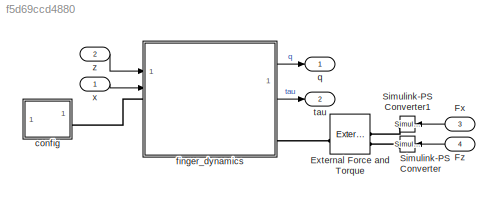
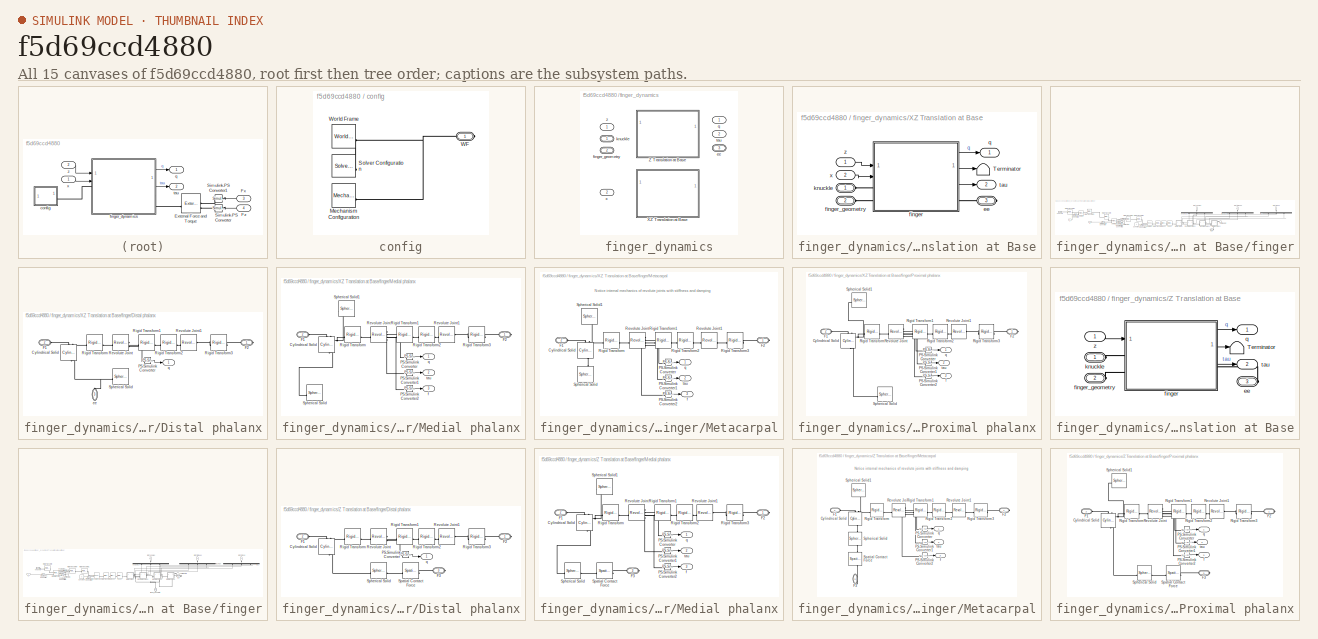
[diagram: thumbnail index - all 15 canvases of the model, root first then tree order]
MODEL slx_f5d69ccd4880
KIND model
CONFIG AbsTol = auto
CONFIG EnableMultiTasking = off
CONFIG FixedStep = auto
CONFIG MaxStep = auto
CONFIG MinStep = auto
CONFIG RelTol = 1e-3
CONFIG SampleTimeConstraint = Unconstrained
CONFIG SolverName = VariableStepAuto
CONFIG StartTime = 0.0
CONFIG StopTime = 10.0
BLOCK [Reference] External Force and Torque  REF=sm_lib/Forces and
Torques/External Force
and Torque
  NameLocation = top
  SourceBlock = sm_lib/Forces and\nTorques/External Force\nand Torque
  SourceType = External Force\nand Torque
BLOCK [Inport] Fx
  NameLocation = right
  Port = 3
BLOCK [Inport] Fz
  NameLocation = right
  Port = 4
BLOCK [Reference] Simulink-PS Converter  REF=nesl_utility/Simulink-PS
Converter
  NameLocation = top
  SourceBlock = nesl_utility/Simulink-PS\nConverter
  SourceType = Simulink-PS\nConverter
BLOCK [Reference] Simulink-PS Converter1  REF=nesl_utility/Simulink-PS
Converter
  SourceBlock = nesl_utility/Simulink-PS\nConverter
  SourceType = Simulink-PS\nConverter
BLOCK [SubSystem] config
BLOCK [Reference] config/Mechanism Configuration  REF=sm_lib/Utilities/Mechanism
Configuration
  SourceBlock = sm_lib/Utilities/Mechanism\nConfiguration
  SourceType = Mechanism\nConfiguration
BLOCK [Reference] config/Solver Configuration  REF=nesl_utility/Solver
Configuration
  SourceBlock = nesl_utility/Solver\nConfiguration
  SourceType = Solver\nConfiguration
BLOCK [PMIOPort] config/WF
  Side = Right
BLOCK [Reference] config/World Frame  REF=sm_lib/Frames and
Transforms/World Frame
  SourceBlock = sm_lib/Frames and\nTransforms/World Frame
  SourceType = World Frame
BLOCK [SubSystem] finger_dynamics
  Variant = on
  VariantControl = Choice
BLOCK [SubSystem] finger_dynamics/XZ Translation at Base
  VariantControl = plant_choice == 2
BLOCK [Terminator] finger_dynamics/XZ Translation at Base/Terminator
BLOCK [PMIOPort] finger_dynamics/XZ Translation at Base/ee
  NameLocation = right
  Port = 3
  Side = Right
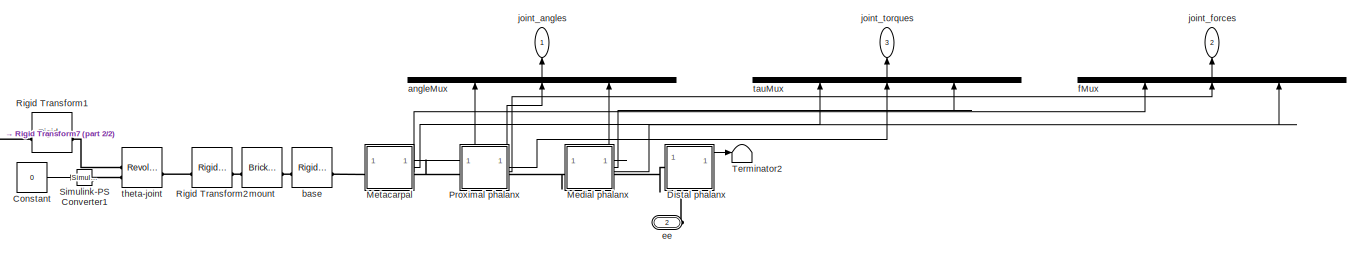
[diagram: finger_dynamics/XZ Translation at Base/finger - part 1/2, center side, full height]
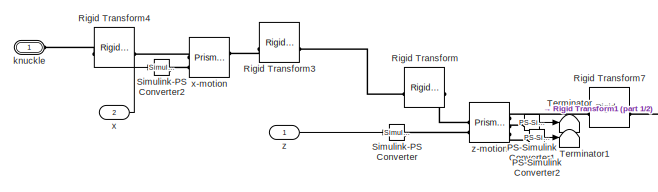
[diagram: finger_dynamics/XZ Translation at Base/finger - part 2/2, middle left region]
BLOCK [SubSystem] finger_dynamics/XZ Translation at Base/finger
BLOCK [Constant] finger_dynamics/XZ Translation at Base/finger/Constant
  Value = 0
BLOCK [SubSystem] finger_dynamics/XZ Translation at Base/finger/Distal phalanx
BLOCK [Reference] finger_dynamics/XZ Translation at Base/finger/Distal phalanx/Cylindrical Solid  REF=sm_lib/Body Elements/Cylindrical Solid
  NameLocation = left
  SourceBlock = sm_lib/Body Elements/Cylindrical Solid
  SourceType = Cylindrical Solid
BLOCK [PMIOPort] finger_dynamics/XZ Translation at Base/finger/Distal phalanx/F1
  NameLocation = top
  Port = 2
  Side = Left
BLOCK [PMIOPort] finger_dynamics/XZ Translation at Base/finger/Distal phalanx/F2
  Side = Right
BLOCK [Reference] finger_dynamics/XZ Translation at Base/finger/Distal phalanx/PS-Simulink Converter  REF=nesl_utility/PS-Simulink
Converter
  SourceBlock = nesl_utility/PS-Simulink\nConverter
  SourceType = PS-Simulink\nConverter
BLOCK [Reference] finger_dynamics/XZ Translation at Base/finger/Distal phalanx/Revolute Joint  REF=sm_lib/Joints/Revolute Joint
  SourceBlock = sm_lib/Joints/Revolute Joint
  SourceType = Revolute Joint
BLOCK [Reference] finger_dynamics/XZ Translation at Base/finger/Distal phalanx/Revolute Joint1  REF=sm_lib/Joints/Revolute Joint
  SourceBlock = sm_lib/Joints/Revolute Joint
  SourceType = Revolute Joint
BLOCK [Reference] finger_dynamics/XZ Translation at Base/finger/Distal phalanx/Rigid Transform  REF=sm_lib/Frames and
Transforms/Rigid
Transform
  SourceBlock = sm_lib/Frames and\nTransforms/Rigid\nTransform
  SourceType = Rigid\nTransform
BLOCK [Reference] finger_dynamics/XZ Translation at Base/finger/Distal phalanx/Rigid Transform1  REF=sm_lib/Frames and
Transforms/Rigid
Transform
  NameLocation = top
  SourceBlock = sm_lib/Frames and\nTransforms/Rigid\nTransform
  SourceType = Rigid\nTransform
BLOCK [Reference] finger_dynamics/XZ Translation at Base/finger/Distal phalanx/Rigid Transform2  REF=sm_lib/Frames and
Transforms/Rigid
Transform
  SourceBlock = sm_lib/Frames and\nTransforms/Rigid\nTransform
  SourceType = Rigid\nTransform
BLOCK [Reference] finger_dynamics/XZ Translation at Base/finger/Distal phalanx/Rigid Transform3  REF=sm_lib/Frames and
Transforms/Rigid
Transform
  NameLocation = top
  SourceBlock = sm_lib/Frames and\nTransforms/Rigid\nTransform
  SourceType = Rigid\nTransform
BLOCK [Reference] finger_dynamics/XZ Translation at Base/finger/Distal phalanx/Spherical Solid  REF=sm_lib/Body Elements/Spherical Solid
  NameLocation = top
  SourceBlock = sm_lib/Body Elements/Spherical Solid
  SourceType = Spherical Solid
BLOCK [PMIOPort] finger_dynamics/XZ Translation at Base/finger/Distal phalanx/ee
  NameLocation = right
  Port = 3
  Side = Left
BLOCK [Outport] finger_dynamics/XZ Translation at Base/finger/Distal phalanx/q
BLOCK [SubSystem] finger_dynamics/XZ Translation at Base/finger/Medial phalanx
BLOCK [Reference] finger_dynamics/XZ Translation at Base/finger/Medial phalanx/Cylindrical Solid  REF=sm_lib/Body Elements/Cylindrical Solid
  NameLocation = left
  SourceBlock = sm_lib/Body Elements/Cylindrical Solid
  SourceType = Cylindrical Solid
BLOCK [PMIOPort] finger_dynamics/XZ Translation at Base/finger/Medial phalanx/F1
  NameLocation = top
  Port = 2
  Side = Left
BLOCK [PMIOPort] finger_dynamics/XZ Translation at Base/finger/Medial phalanx/F2
  Side = Right
BLOCK [Reference] finger_dynamics/XZ Translation at Base/finger/Medial phalanx/PS-Simulink Converter  REF=nesl_utility/PS-Simulink
Converter
  SourceBlock = nesl_utility/PS-Simulink\nConverter
  SourceType = PS-Simulink\nConverter
BLOCK [Reference] finger_dynamics/XZ Translation at Base/finger/Medial phalanx/PS-Simulink Converter1  REF=nesl_utility/PS-Simulink
Converter
  SourceBlock = nesl_utility/PS-Simulink\nConverter
  SourceType = PS-Simulink\nConverter
BLOCK [Reference] finger_dynamics/XZ Translation at Base/finger/Medial phalanx/PS-Simulink Converter2  REF=nesl_utility/PS-Simulink
Converter
  SourceBlock = nesl_utility/PS-Simulink\nConverter
  SourceType = PS-Simulink\nConverter
BLOCK [Reference] finger_dynamics/XZ Translation at Base/finger/Medial phalanx/Revolute Joint  REF=sm_lib/Joints/Revolute Joint
  SourceBlock = sm_lib/Joints/Revolute Joint
  SourceType = Revolute Joint
BLOCK [Reference] finger_dynamics/XZ Translation at Base/finger/Medial phalanx/Revolute Joint1  REF=sm_lib/Joints/Revolute Joint
  SourceBlock = sm_lib/Joints/Revolute Joint
  SourceType = Revolute Joint
BLOCK [Reference] finger_dynamics/XZ Translation at Base/finger/Medial phalanx/Rigid Transform  REF=sm_lib/Frames and
Transforms/Rigid
Transform
  SourceBlock = sm_lib/Frames and\nTransforms/Rigid\nTransform
  SourceType = Rigid\nTransform
BLOCK [Reference] finger_dynamics/XZ Translation at Base/finger/Medial phalanx/Rigid Transform1  REF=sm_lib/Frames and
Transforms/Rigid
Transform
  NameLocation = top
  SourceBlock = sm_lib/Frames and\nTransforms/Rigid\nTransform
  SourceType = Rigid\nTransform
BLOCK [Reference] finger_dynamics/XZ Translation at Base/finger/Medial phalanx/Rigid Transform2  REF=sm_lib/Frames and
Transforms/Rigid
Transform
  SourceBlock = sm_lib/Frames and\nTransforms/Rigid\nTransform
  SourceType = Rigid\nTransform
BLOCK [Reference] finger_dynamics/XZ Translation at Base/finger/Medial phalanx/Rigid Transform3  REF=sm_lib/Frames and
Transforms/Rigid
Transform
  NameLocation = top
  SourceBlock = sm_lib/Frames and\nTransforms/Rigid\nTransform
  SourceType = Rigid\nTransform
BLOCK [Reference] finger_dynamics/XZ Translation at Base/finger/Medial phalanx/Spherical Solid  REF=sm_lib/Body Elements/Spherical Solid
  NameLocation = top
  SourceBlock = sm_lib/Body Elements/Spherical Solid
  SourceType = Spherical Solid
BLOCK [Reference] finger_dynamics/XZ Translation at Base/finger/Medial phalanx/Spherical Solid1  REF=sm_lib/Body Elements/Spherical Solid
  NameLocation = top
  SourceBlock = sm_lib/Body Elements/Spherical Solid
  SourceType = Spherical Solid
BLOCK [Outport] finger_dynamics/XZ Translation at Base/finger/Medial phalanx/f
  Port = 3
BLOCK [Outport] finger_dynamics/XZ Translation at Base/finger/Medial phalanx/q
BLOCK [Outport] finger_dynamics/XZ Translation at Base/finger/Medial phalanx/tau
  Port = 2
BLOCK [SubSystem] finger_dynamics/XZ Translation at Base/finger/Metacarpal
BLOCK [Reference] finger_dynamics/XZ Translation at Base/finger/Metacarpal/Cylindrical Solid  REF=sm_lib/Body Elements/Cylindrical Solid
  NameLocation = left
  SourceBlock = sm_lib/Body Elements/Cylindrical Solid
  SourceType = Cylindrical Solid
BLOCK [PMIOPort] finger_dynamics/XZ Translation at Base/finger/Metacarpal/F1
  NameLocation = top
  Port = 2
  Side = Left
BLOCK [PMIOPort] finger_dynamics/XZ Translation at Base/finger/Metacarpal/F2
  Side = Right
BLOCK [Reference] finger_dynamics/XZ Translation at Base/finger/Metacarpal/PS-Simulink Converter  REF=nesl_utility/PS-Simulink
Converter
  SourceBlock = nesl_utility/PS-Simulink\nConverter
  SourceType = PS-Simulink\nConverter
BLOCK [Reference] finger_dynamics/XZ Translation at Base/finger/Metacarpal/PS-Simulink Converter1  REF=nesl_utility/PS-Simulink
Converter
  SourceBlock = nesl_utility/PS-Simulink\nConverter
  SourceType = PS-Simulink\nConverter
BLOCK [Reference] finger_dynamics/XZ Translation at Base/finger/Metacarpal/PS-Simulink Converter2  REF=nesl_utility/PS-Simulink
Converter
  SourceBlock = nesl_utility/PS-Simulink\nConverter
  SourceType = PS-Simulink\nConverter
BLOCK [Reference] finger_dynamics/XZ Translation at Base/finger/Metacarpal/Revolute Joint  REF=sm_lib/Joints/Revolute Joint
  SourceBlock = sm_lib/Joints/Revolute Joint
  SourceType = Revolute Joint
BLOCK [Reference] finger_dynamics/XZ Translation at Base/finger/Metacarpal/Revolute Joint1  REF=sm_lib/Joints/Revolute Joint
  SourceBlock = sm_lib/Joints/Revolute Joint
  SourceType = Revolute Joint
BLOCK [Reference] finger_dynamics/XZ Translation at Base/finger/Metacarpal/Rigid Transform  REF=sm_lib/Frames and
Transforms/Rigid
Transform
  SourceBlock = sm_lib/Frames and\nTransforms/Rigid\nTransform
  SourceType = Rigid\nTransform
BLOCK [Reference] finger_dynamics/XZ Translation at Base/finger/Metacarpal/Rigid Transform1  REF=sm_lib/Frames and
Transforms/Rigid
Transform
  NameLocation = top
  SourceBlock = sm_lib/Frames and\nTransforms/Rigid\nTransform
  SourceType = Rigid\nTransform
BLOCK [Reference] finger_dynamics/XZ Translation at Base/finger/Metacarpal/Rigid Transform2  REF=sm_lib/Frames and
Transforms/Rigid
Transform
  SourceBlock = sm_lib/Frames and\nTransforms/Rigid\nTransform
  SourceType = Rigid\nTransform
BLOCK [Reference] finger_dynamics/XZ Translation at Base/finger/Metacarpal/Rigid Transform3  REF=sm_lib/Frames and
Transforms/Rigid
Transform
  NameLocation = top
  SourceBlock = sm_lib/Frames and\nTransforms/Rigid\nTransform
  SourceType = Rigid\nTransform
BLOCK [Reference] finger_dynamics/XZ Translation at Base/finger/Metacarpal/Spherical Solid  REF=sm_lib/Body Elements/Spherical Solid
  NameLocation = right
  SourceBlock = sm_lib/Body Elements/Spherical Solid
  SourceType = Spherical Solid
BLOCK [Reference] finger_dynamics/XZ Translation at Base/finger/Metacarpal/Spherical Solid1  REF=sm_lib/Body Elements/Spherical Solid
  NameLocation = left
  SourceBlock = sm_lib/Body Elements/Spherical Solid
  SourceType = Spherical Solid
BLOCK [Outport] finger_dynamics/XZ Translation at Base/finger/Metacarpal/f
  Port = 3
BLOCK [Outport] finger_dynamics/XZ Translation at Base/finger/Metacarpal/q
BLOCK [Outport] finger_dynamics/XZ Translation at Base/finger/Metacarpal/tau
  Port = 2
BLOCK [Reference] finger_dynamics/XZ Translation at Base/finger/PS-Simulink Converter1  REF=nesl_utility/PS-Simulink
Converter
  SourceBlock = nesl_utility/PS-Simulink\nConverter
  SourceType = PS-Simulink\nConverter
BLOCK [Reference] finger_dynamics/XZ Translation at Base/finger/PS-Simulink Converter2  REF=nesl_utility/PS-Simulink
Converter
  SourceBlock = nesl_utility/PS-Simulink\nConverter
  SourceType = PS-Simulink\nConverter
BLOCK [SubSystem] finger_dynamics/XZ Translation at Base/finger/Proximal phalanx
BLOCK [Reference] finger_dynamics/XZ Translation at Base/finger/Proximal phalanx/Cylindrical Solid  REF=sm_lib/Body Elements/Cylindrical Solid
  NameLocation = left
  SourceBlock = sm_lib/Body Elements/Cylindrical Solid
  SourceType = Cylindrical Solid
BLOCK [PMIOPort] finger_dynamics/XZ Translation at Base/finger/Proximal phalanx/F1
  NameLocation = top
  Port = 2
  Side = Left
BLOCK [PMIOPort] finger_dynamics/XZ Translation at Base/finger/Proximal phalanx/F2
  Side = Right
BLOCK [Reference] finger_dynamics/XZ Translation at Base/finger/Proximal phalanx/PS-Simulink Converter  REF=nesl_utility/PS-Simulink
Converter
  SourceBlock = nesl_utility/PS-Simulink\nConverter
  SourceType = PS-Simulink\nConverter
BLOCK [Reference] finger_dynamics/XZ Translation at Base/finger/Proximal phalanx/PS-Simulink Converter1  REF=nesl_utility/PS-Simulink
Converter
  SourceBlock = nesl_utility/PS-Simulink\nConverter
  SourceType = PS-Simulink\nConverter
BLOCK [Reference] finger_dynamics/XZ Translation at Base/finger/Proximal phalanx/PS-Simulink Converter2  REF=nesl_utility/PS-Simulink
Converter
  SourceBlock = nesl_utility/PS-Simulink\nConverter
  SourceType = PS-Simulink\nConverter
BLOCK [Reference] finger_dynamics/XZ Translation at Base/finger/Proximal phalanx/Revolute Joint  REF=sm_lib/Joints/Revolute Joint
  SourceBlock = sm_lib/Joints/Revolute Joint
  SourceType = Revolute Joint
BLOCK [Reference] finger_dynamics/XZ Translation at Base/finger/Proximal phalanx/Revolute Joint1  REF=sm_lib/Joints/Revolute Joint
  SourceBlock = sm_lib/Joints/Revolute Joint
  SourceType = Revolute Joint
BLOCK [Reference] finger_dynamics/XZ Translation at Base/finger/Proximal phalanx/Rigid Transform  REF=sm_lib/Frames and
Transforms/Rigid
Transform
  SourceBlock = sm_lib/Frames and\nTransforms/Rigid\nTransform
  SourceType = Rigid\nTransform
BLOCK [Reference] finger_dynamics/XZ Translation at Base/finger/Proximal phalanx/Rigid Transform1  REF=sm_lib/Frames and
Transforms/Rigid
Transform
  NameLocation = top
  SourceBlock = sm_lib/Frames and\nTransforms/Rigid\nTransform
  SourceType = Rigid\nTransform
BLOCK [Reference] finger_dynamics/XZ Translation at Base/finger/Proximal phalanx/Rigid Transform2  REF=sm_lib/Frames and
Transforms/Rigid
Transform
  SourceBlock = sm_lib/Frames and\nTransforms/Rigid\nTransform
  SourceType = Rigid\nTransform
BLOCK [Reference] finger_dynamics/XZ Translation at Base/finger/Proximal phalanx/Rigid Transform3  REF=sm_lib/Frames and
Transforms/Rigid
Transform
  NameLocation = top
  SourceBlock = sm_lib/Frames and\nTransforms/Rigid\nTransform
  SourceType = Rigid\nTransform
BLOCK [Reference] finger_dynamics/XZ Translation at Base/finger/Proximal phalanx/Spherical Solid  REF=sm_lib/Body Elements/Spherical Solid
  NameLocation = top
  SourceBlock = sm_lib/Body Elements/Spherical Solid
  SourceType = Spherical Solid
BLOCK [Reference] finger_dynamics/XZ Translation at Base/finger/Proximal phalanx/Spherical Solid1  REF=sm_lib/Body Elements/Spherical Solid
  NameLocation = top
  SourceBlock = sm_lib/Body Elements/Spherical Solid
  SourceType = Spherical Solid
BLOCK [Outport] finger_dynamics/XZ Translation at Base/finger/Proximal phalanx/f
  Port = 3
BLOCK [Outport] finger_dynamics/XZ Translation at Base/finger/Proximal phalanx/q
BLOCK [Outport] finger_dynamics/XZ Translation at Base/finger/Proximal phalanx/tau
  Port = 2
BLOCK [Reference] finger_dynamics/XZ Translation at Base/finger/Rigid Transform  REF=sm_lib/Frames and
Transforms/Rigid
Transform
  SourceBlock = sm_lib/Frames and\nTransforms/Rigid\nTransform
  SourceType = Rigid\nTransform
BLOCK [Reference] finger_dynamics/XZ Translation at Base/finger/Rigid Transform1  REF=sm_lib/Frames and
Transforms/Rigid
Transform
  SourceBlock = sm_lib/Frames and\nTransforms/Rigid\nTransform
  SourceType = Rigid\nTransform
BLOCK [Reference] finger_dynamics/XZ Translation at Base/finger/Rigid Transform2  REF=sm_lib/Frames and
Transforms/Rigid
Transform
  NameLocation = top
  SourceBlock = sm_lib/Frames and\nTransforms/Rigid\nTransform
  SourceType = Rigid\nTransform
BLOCK [Reference] finger_dynamics/XZ Translation at Base/finger/Rigid Transform3  REF=sm_lib/Frames and
Transforms/Rigid
Transform
  SourceBlock = sm_lib/Frames and\nTransforms/Rigid\nTransform
  SourceType = Rigid\nTransform
BLOCK [Reference] finger_dynamics/XZ Translation at Base/finger/Rigid Transform4  REF=sm_lib/Frames and
Transforms/Rigid
Transform
  SourceBlock = sm_lib/Frames and\nTransforms/Rigid\nTransform
  SourceType = Rigid\nTransform
BLOCK [Reference] finger_dynamics/XZ Translation at Base/finger/Rigid Transform7  REF=sm_lib/Frames and
Transforms/Rigid
Transform
  SourceBlock = sm_lib/Frames and\nTransforms/Rigid\nTransform
  SourceType = Rigid\nTransform
BLOCK [Reference] finger_dynamics/XZ Translation at Base/finger/Simulink-PS Converter  REF=nesl_utility/Simulink-PS
Converter
  SourceBlock = nesl_utility/Simulink-PS\nConverter
  SourceType = Simulink-PS\nConverter
BLOCK [Reference] finger_dynamics/XZ Translation at Base/finger/Simulink-PS Converter1  REF=nesl_utility/Simulink-PS
Converter
  SourceBlock = nesl_utility/Simulink-PS\nConverter
  SourceType = Simulink-PS\nConverter
BLOCK [Reference] finger_dynamics/XZ Translation at Base/finger/Simulink-PS Converter2  REF=nesl_utility/Simulink-PS
Converter
  SourceBlock = nesl_utility/Simulink-PS\nConverter
  SourceType = Simulink-PS\nConverter
BLOCK [Terminator] finger_dynamics/XZ Translation at Base/finger/Terminator
BLOCK [Terminator] finger_dynamics/XZ Translation at Base/finger/Terminator1
BLOCK [Terminator] finger_dynamics/XZ Translation at Base/finger/Terminator2
BLOCK [Mux] finger_dynamics/XZ Translation at Base/finger/angleMux
  DisplayOption = bar
  Inputs = 3
  NameLocation = right
BLOCK [Reference] finger_dynamics/XZ Translation at Base/finger/base  REF=sm_lib/Frames and
Transforms/Rigid
Transform
  SourceBlock = sm_lib/Frames and\nTransforms/Rigid\nTransform
  SourceType = Rigid\nTransform
BLOCK [PMIOPort] finger_dynamics/XZ Translation at Base/finger/ee
  Port = 2
  Side = Right
BLOCK [Mux] finger_dynamics/XZ Translation at Base/finger/fMux
  DisplayOption = bar
  Inputs = 3
  NameLocation = right
BLOCK [Outport] finger_dynamics/XZ Translation at Base/finger/joint_angles
  NameLocation = right
BLOCK [Outport] finger_dynamics/XZ Translation at Base/finger/joint_forces
  NameLocation = right
  Port = 2
BLOCK [Outport] finger_dynamics/XZ Translation at Base/finger/joint_torques
  NameLocation = right
  Port = 3
BLOCK [PMIOPort] finger_dynamics/XZ Translation at Base/finger/knuckle
  NameLocation = top
  Side = Left
BLOCK [Reference] finger_dynamics/XZ Translation at Base/finger/mount  REF=sm_lib/Body Elements/Brick Solid
  SourceBlock = sm_lib/Body Elements/Brick Solid
  SourceType = Brick Solid
BLOCK [Mux] finger_dynamics/XZ Translation at Base/finger/tauMux
  DisplayOption = bar
  Inputs = 3
  NameLocation = right
BLOCK [Reference] finger_dynamics/XZ Translation at Base/finger/theta-joint  REF=sm_lib/Joints/Revolute Joint
  SourceBlock = sm_lib/Joints/Revolute Joint
  SourceType = Revolute Joint
BLOCK [Inport] finger_dynamics/XZ Translation at Base/finger/x
  Port = 2
BLOCK [Reference] finger_dynamics/XZ Translation at Base/finger/x-motion  REF=sm_lib/Joints/Prismatic
Joint
  SourceBlock = sm_lib/Joints/Prismatic\nJoint
  SourceType = Prismatic\nJoint
BLOCK [Inport] finger_dynamics/XZ Translation at Base/finger/z
BLOCK [Reference] finger_dynamics/XZ Translation at Base/finger/z-motion  REF=sm_lib/Joints/Prismatic
Joint
  SourceBlock = sm_lib/Joints/Prismatic\nJoint
  SourceType = Prismatic\nJoint
BLOCK [PMIOPort] finger_dynamics/XZ Translation at Base/finger_geometry
  NameLocation = left
  Port = 2
  Side = Left
BLOCK [PMIOPort] finger_dynamics/XZ Translation at Base/knuckle
  NameLocation = left
  Side = Left
BLOCK [Outport] finger_dynamics/XZ Translation at Base/q
  NameLocation = right
BLOCK [Outport] finger_dynamics/XZ Translation at Base/tau
  NameLocation = right
  Port = 2
BLOCK [Inport] finger_dynamics/XZ Translation at Base/x
  NameLocation = left
  Port = 2
BLOCK [Inport] finger_dynamics/XZ Translation at Base/z
  NameLocation = left
BLOCK [SubSystem] finger_dynamics/Z Translation at Base
  VariantControl = plant_choice == 1
BLOCK [Terminator] finger_dynamics/Z Translation at Base/Terminator
BLOCK [PMIOPort] finger_dynamics/Z Translation at Base/ee
  NameLocation = right
  Port = 3
  Side = Right
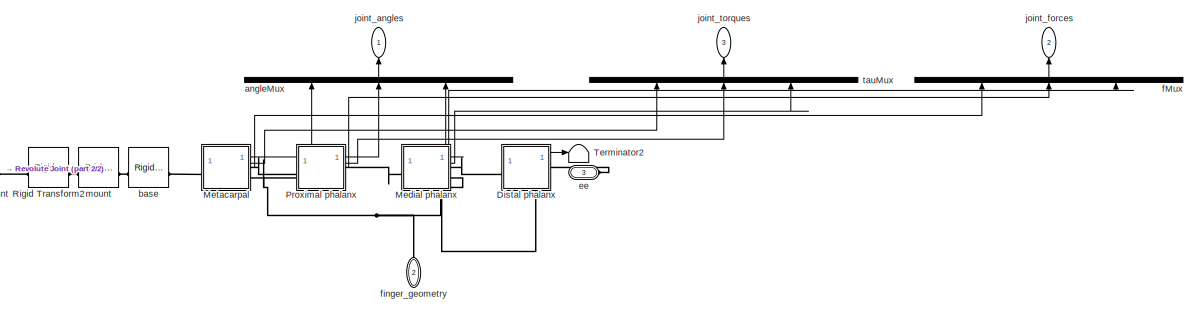
[diagram: finger_dynamics/Z Translation at Base/finger - part 1/2, center side, full height]
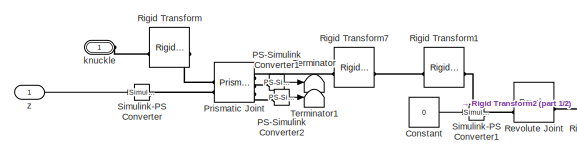
[diagram: finger_dynamics/Z Translation at Base/finger - part 2/2, middle left region]
BLOCK [SubSystem] finger_dynamics/Z Translation at Base/finger
BLOCK [Constant] finger_dynamics/Z Translation at Base/finger/Constant
  Value = 0
BLOCK [SubSystem] finger_dynamics/Z Translation at Base/finger/Distal phalanx
BLOCK [Reference] finger_dynamics/Z Translation at Base/finger/Distal phalanx/Cylindrical Solid  REF=sm_lib/Body Elements/Cylindrical Solid
  NameLocation = left
  SourceBlock = sm_lib/Body Elements/Cylindrical Solid
  SourceType = Cylindrical Solid
BLOCK [PMIOPort] finger_dynamics/Z Translation at Base/finger/Distal phalanx/F1
  NameLocation = top
  Port = 2
  Side = Left
BLOCK [PMIOPort] finger_dynamics/Z Translation at Base/finger/Distal phalanx/F2
  Side = Right
BLOCK [PMIOPort] finger_dynamics/Z Translation at Base/finger/Distal phalanx/F3
  Port = 3
  Side = Right
BLOCK [Reference] finger_dynamics/Z Translation at Base/finger/Distal phalanx/PS-Simulink Converter  REF=nesl_utility/PS-Simulink
Converter
  SourceBlock = nesl_utility/PS-Simulink\nConverter
  SourceType = PS-Simulink\nConverter
BLOCK [Reference] finger_dynamics/Z Translation at Base/finger/Distal phalanx/Revolute Joint  REF=sm_lib/Joints/Revolute Joint
  SourceBlock = sm_lib/Joints/Revolute Joint
  SourceType = Revolute Joint
BLOCK [Reference] finger_dynamics/Z Translation at Base/finger/Distal phalanx/Revolute Joint1  REF=sm_lib/Joints/Revolute Joint
  SourceBlock = sm_lib/Joints/Revolute Joint
  SourceType = Revolute Joint
BLOCK [Reference] finger_dynamics/Z Translation at Base/finger/Distal phalanx/Rigid Transform  REF=sm_lib/Frames and
Transforms/Rigid
Transform
  SourceBlock = sm_lib/Frames and\nTransforms/Rigid\nTransform
  SourceType = Rigid\nTransform
BLOCK [Reference] finger_dynamics/Z Translation at Base/finger/Distal phalanx/Rigid Transform1  REF=sm_lib/Frames and
Transforms/Rigid
Transform
  NameLocation = top
  SourceBlock = sm_lib/Frames and\nTransforms/Rigid\nTransform
  SourceType = Rigid\nTransform
BLOCK [Reference] finger_dynamics/Z Translation at Base/finger/Distal phalanx/Rigid Transform2  REF=sm_lib/Frames and
Transforms/Rigid
Transform
  SourceBlock = sm_lib/Frames and\nTransforms/Rigid\nTransform
  SourceType = Rigid\nTransform
BLOCK [Reference] finger_dynamics/Z Translation at Base/finger/Distal phalanx/Rigid Transform3  REF=sm_lib/Frames and
Transforms/Rigid
Transform
  NameLocation = top
  SourceBlock = sm_lib/Frames and\nTransforms/Rigid\nTransform
  SourceType = Rigid\nTransform
BLOCK [Reference] finger_dynamics/Z Translation at Base/finger/Distal phalanx/Spatial Contact Force  REF=sm_lib/Forces and
Torques/Spatial
Contact Force
  SourceBlock = sm_lib/Forces and\nTorques/Spatial\nContact Force
  SourceType = Spatial\nContact Force
BLOCK [Reference] finger_dynamics/Z Translation at Base/finger/Distal phalanx/Spherical Solid  REF=sm_lib/Body Elements/Spherical Solid
  NameLocation = top
  SourceBlock = sm_lib/Body Elements/Spherical Solid
  SourceType = Spherical Solid
BLOCK [Outport] finger_dynamics/Z Translation at Base/finger/Distal phalanx/q
BLOCK [SubSystem] finger_dynamics/Z Translation at Base/finger/Medial phalanx
BLOCK [Reference] finger_dynamics/Z Translation at Base/finger/Medial phalanx/Cylindrical Solid  REF=sm_lib/Body Elements/Cylindrical Solid
  NameLocation = left
  SourceBlock = sm_lib/Body Elements/Cylindrical Solid
  SourceType = Cylindrical Solid
BLOCK [PMIOPort] finger_dynamics/Z Translation at Base/finger/Medial phalanx/F1
  NameLocation = top
  Port = 2
  Side = Left
BLOCK [PMIOPort] finger_dynamics/Z Translation at Base/finger/Medial phalanx/F2
  Side = Right
BLOCK [PMIOPort] finger_dynamics/Z Translation at Base/finger/Medial phalanx/F3
  Port = 3
  Side = Right
BLOCK [Reference] finger_dynamics/Z Translation at Base/finger/Medial phalanx/PS-Simulink Converter  REF=nesl_utility/PS-Simulink
Converter
  SourceBlock = nesl_utility/PS-Simulink\nConverter
  SourceType = PS-Simulink\nConverter
BLOCK [Reference] finger_dynamics/Z Translation at Base/finger/Medial phalanx/PS-Simulink Converter1  REF=nesl_utility/PS-Simulink
Converter
  SourceBlock = nesl_utility/PS-Simulink\nConverter
  SourceType = PS-Simulink\nConverter
BLOCK [Reference] finger_dynamics/Z Translation at Base/finger/Medial phalanx/PS-Simulink Converter2  REF=nesl_utility/PS-Simulink
Converter
  SourceBlock = nesl_utility/PS-Simulink\nConverter
  SourceType = PS-Simulink\nConverter
BLOCK [Reference] finger_dynamics/Z Translation at Base/finger/Medial phalanx/Revolute Joint  REF=sm_lib/Joints/Revolute Joint
  SourceBlock = sm_lib/Joints/Revolute Joint
  SourceType = Revolute Joint
BLOCK [Reference] finger_dynamics/Z Translation at Base/finger/Medial phalanx/Revolute Joint1  REF=sm_lib/Joints/Revolute Joint
  SourceBlock = sm_lib/Joints/Revolute Joint
  SourceType = Revolute Joint
BLOCK [Reference] finger_dynamics/Z Translation at Base/finger/Medial phalanx/Rigid Transform  REF=sm_lib/Frames and
Transforms/Rigid
Transform
  SourceBlock = sm_lib/Frames and\nTransforms/Rigid\nTransform
  SourceType = Rigid\nTransform
BLOCK [Reference] finger_dynamics/Z Translation at Base/finger/Medial phalanx/Rigid Transform1  REF=sm_lib/Frames and
Transforms/Rigid
Transform
  NameLocation = top
  SourceBlock = sm_lib/Frames and\nTransforms/Rigid\nTransform
  SourceType = Rigid\nTransform
BLOCK [Reference] finger_dynamics/Z Translation at Base/finger/Medial phalanx/Rigid Transform2  REF=sm_lib/Frames and
Transforms/Rigid
Transform
  SourceBlock = sm_lib/Frames and\nTransforms/Rigid\nTransform
  SourceType = Rigid\nTransform
BLOCK [Reference] finger_dynamics/Z Translation at Base/finger/Medial phalanx/Rigid Transform3  REF=sm_lib/Frames and
Transforms/Rigid
Transform
  NameLocation = top
  SourceBlock = sm_lib/Frames and\nTransforms/Rigid\nTransform
  SourceType = Rigid\nTransform
BLOCK [Reference] finger_dynamics/Z Translation at Base/finger/Medial phalanx/Spatial Contact Force  REF=sm_lib/Forces and
Torques/Spatial
Contact Force
  SourceBlock = sm_lib/Forces and\nTorques/Spatial\nContact Force
  SourceType = Spatial\nContact Force
BLOCK [Reference] finger_dynamics/Z Translation at Base/finger/Medial phalanx/Spherical Solid  REF=sm_lib/Body Elements/Spherical Solid
  NameLocation = top
  SourceBlock = sm_lib/Body Elements/Spherical Solid
  SourceType = Spherical Solid
BLOCK [Reference] finger_dynamics/Z Translation at Base/finger/Medial phalanx/Spherical Solid1  REF=sm_lib/Body Elements/Spherical Solid
  NameLocation = top
  SourceBlock = sm_lib/Body Elements/Spherical Solid
  SourceType = Spherical Solid
BLOCK [Outport] finger_dynamics/Z Translation at Base/finger/Medial phalanx/f
  Port = 3
BLOCK [Outport] finger_dynamics/Z Translation at Base/finger/Medial phalanx/q
BLOCK [Outport] finger_dynamics/Z Translation at Base/finger/Medial phalanx/tau
  Port = 2
BLOCK [SubSystem] finger_dynamics/Z Translation at Base/finger/Metacarpal
BLOCK [Reference] finger_dynamics/Z Translation at Base/finger/Metacarpal/Cylindrical Solid  REF=sm_lib/Body Elements/Cylindrical Solid
  NameLocation = left
  SourceBlock = sm_lib/Body Elements/Cylindrical Solid
  SourceType = Cylindrical Solid
BLOCK [PMIOPort] finger_dynamics/Z Translation at Base/finger/Metacarpal/F1
  NameLocation = top
  Port = 2
  Side = Left
BLOCK [PMIOPort] finger_dynamics/Z Translation at Base/finger/Metacarpal/F2
  Side = Right
BLOCK [PMIOPort] finger_dynamics/Z Translation at Base/finger/Metacarpal/F3
  NameLocation = left
  Port = 3
  Side = Right
BLOCK [Reference] finger_dynamics/Z Translation at Base/finger/Metacarpal/PS-Simulink Converter  REF=nesl_utility/PS-Simulink
Converter
  SourceBlock = nesl_utility/PS-Simulink\nConverter
  SourceType = PS-Simulink\nConverter
BLOCK [Reference] finger_dynamics/Z Translation at Base/finger/Metacarpal/PS-Simulink Converter1  REF=nesl_utility/PS-Simulink
Converter
  SourceBlock = nesl_utility/PS-Simulink\nConverter
  SourceType = PS-Simulink\nConverter
BLOCK [Reference] finger_dynamics/Z Translation at Base/finger/Metacarpal/PS-Simulink Converter2  REF=nesl_utility/PS-Simulink
Converter
  SourceBlock = nesl_utility/PS-Simulink\nConverter
  SourceType = PS-Simulink\nConverter
BLOCK [Reference] finger_dynamics/Z Translation at Base/finger/Metacarpal/Revolute Joint  REF=sm_lib/Joints/Revolute Joint
  SourceBlock = sm_lib/Joints/Revolute Joint
  SourceType = Revolute Joint
BLOCK [Reference] finger_dynamics/Z Translation at Base/finger/Metacarpal/Revolute Joint1  REF=sm_lib/Joints/Revolute Joint
  SourceBlock = sm_lib/Joints/Revolute Joint
  SourceType = Revolute Joint
BLOCK [Reference] finger_dynamics/Z Translation at Base/finger/Metacarpal/Rigid Transform  REF=sm_lib/Frames and
Transforms/Rigid
Transform
  SourceBlock = sm_lib/Frames and\nTransforms/Rigid\nTransform
  SourceType = Rigid\nTransform
BLOCK [Reference] finger_dynamics/Z Translation at Base/finger/Metacarpal/Rigid Transform1  REF=sm_lib/Frames and
Transforms/Rigid
Transform
  NameLocation = top
  SourceBlock = sm_lib/Frames and\nTransforms/Rigid\nTransform
  SourceType = Rigid\nTransform
BLOCK [Reference] finger_dynamics/Z Translation at Base/finger/Metacarpal/Rigid Transform2  REF=sm_lib/Frames and
Transforms/Rigid
Transform
  SourceBlock = sm_lib/Frames and\nTransforms/Rigid\nTransform
  SourceType = Rigid\nTransform
BLOCK [Reference] finger_dynamics/Z Translation at Base/finger/Metacarpal/Rigid Transform3  REF=sm_lib/Frames and
Transforms/Rigid
Transform
  NameLocation = top
  SourceBlock = sm_lib/Frames and\nTransforms/Rigid\nTransform
  SourceType = Rigid\nTransform
BLOCK [Reference] finger_dynamics/Z Translation at Base/finger/Metacarpal/Spatial Contact Force  REF=sm_lib/Forces and
Torques/Spatial
Contact Force
  NameLocation = left
  SourceBlock = sm_lib/Forces and\nTorques/Spatial\nContact Force
  SourceType = Spatial\nContact Force
BLOCK [Reference] finger_dynamics/Z Translation at Base/finger/Metacarpal/Spherical Solid  REF=sm_lib/Body Elements/Spherical Solid
  NameLocation = right
  SourceBlock = sm_lib/Body Elements/Spherical Solid
  SourceType = Spherical Solid
BLOCK [Reference] finger_dynamics/Z Translation at Base/finger/Metacarpal/Spherical Solid1  REF=sm_lib/Body Elements/Spherical Solid
  NameLocation = left
  SourceBlock = sm_lib/Body Elements/Spherical Solid
  SourceType = Spherical Solid
BLOCK [Outport] finger_dynamics/Z Translation at Base/finger/Metacarpal/f
  Port = 3
BLOCK [Outport] finger_dynamics/Z Translation at Base/finger/Metacarpal/q
BLOCK [Outport] finger_dynamics/Z Translation at Base/finger/Metacarpal/tau
  Port = 2
BLOCK [Reference] finger_dynamics/Z Translation at Base/finger/PS-Simulink Converter1  REF=nesl_utility/PS-Simulink
Converter
  SourceBlock = nesl_utility/PS-Simulink\nConverter
  SourceType = PS-Simulink\nConverter
BLOCK [Reference] finger_dynamics/Z Translation at Base/finger/PS-Simulink Converter2  REF=nesl_utility/PS-Simulink
Converter
  SourceBlock = nesl_utility/PS-Simulink\nConverter
  SourceType = PS-Simulink\nConverter
BLOCK [Reference] finger_dynamics/Z Translation at Base/finger/Prismatic Joint  REF=sm_lib/Joints/Prismatic
Joint
  SourceBlock = sm_lib/Joints/Prismatic\nJoint
  SourceType = Prismatic\nJoint
BLOCK [SubSystem] finger_dynamics/Z Translation at Base/finger/Proximal phalanx
BLOCK [Reference] finger_dynamics/Z Translation at Base/finger/Proximal phalanx/Cylindrical Solid  REF=sm_lib/Body Elements/Cylindrical Solid
  NameLocation = left
  SourceBlock = sm_lib/Body Elements/Cylindrical Solid
  SourceType = Cylindrical Solid
BLOCK [PMIOPort] finger_dynamics/Z Translation at Base/finger/Proximal phalanx/F1
  NameLocation = top
  Port = 2
  Side = Left
BLOCK [PMIOPort] finger_dynamics/Z Translation at Base/finger/Proximal phalanx/F2
  Side = Right
BLOCK [PMIOPort] finger_dynamics/Z Translation at Base/finger/Proximal phalanx/F3
  Port = 3
  Side = Right
BLOCK [Reference] finger_dynamics/Z Translation at Base/finger/Proximal phalanx/PS-Simulink Converter  REF=nesl_utility/PS-Simulink
Converter
  SourceBlock = nesl_utility/PS-Simulink\nConverter
  SourceType = PS-Simulink\nConverter
BLOCK [Reference] finger_dynamics/Z Translation at Base/finger/Proximal phalanx/PS-Simulink Converter1  REF=nesl_utility/PS-Simulink
Converter
  SourceBlock = nesl_utility/PS-Simulink\nConverter
  SourceType = PS-Simulink\nConverter
BLOCK [Reference] finger_dynamics/Z Translation at Base/finger/Proximal phalanx/PS-Simulink Converter2  REF=nesl_utility/PS-Simulink
Converter
  SourceBlock = nesl_utility/PS-Simulink\nConverter
  SourceType = PS-Simulink\nConverter
BLOCK [Reference] finger_dynamics/Z Translation at Base/finger/Proximal phalanx/Revolute Joint  REF=sm_lib/Joints/Revolute Joint
  SourceBlock = sm_lib/Joints/Revolute Joint
  SourceType = Revolute Joint
BLOCK [Reference] finger_dynamics/Z Translation at Base/finger/Proximal phalanx/Revolute Joint1  REF=sm_lib/Joints/Revolute Joint
  SourceBlock = sm_lib/Joints/Revolute Joint
  SourceType = Revolute Joint
BLOCK [Reference] finger_dynamics/Z Translation at Base/finger/Proximal phalanx/Rigid Transform  REF=sm_lib/Frames and
Transforms/Rigid
Transform
  SourceBlock = sm_lib/Frames and\nTransforms/Rigid\nTransform
  SourceType = Rigid\nTransform
BLOCK [Reference] finger_dynamics/Z Translation at Base/finger/Proximal phalanx/Rigid Transform1  REF=sm_lib/Frames and
Transforms/Rigid
Transform
  NameLocation = top
  SourceBlock = sm_lib/Frames and\nTransforms/Rigid\nTransform
  SourceType = Rigid\nTransform
BLOCK [Reference] finger_dynamics/Z Translation at Base/finger/Proximal phalanx/Rigid Transform2  REF=sm_lib/Frames and
Transforms/Rigid
Transform
  SourceBlock = sm_lib/Frames and\nTransforms/Rigid\nTransform
  SourceType = Rigid\nTransform
BLOCK [Reference] finger_dynamics/Z Translation at Base/finger/Proximal phalanx/Rigid Transform3  REF=sm_lib/Frames and
Transforms/Rigid
Transform
  NameLocation = top
  SourceBlock = sm_lib/Frames and\nTransforms/Rigid\nTransform
  SourceType = Rigid\nTransform
BLOCK [Reference] finger_dynamics/Z Translation at Base/finger/Proximal phalanx/Spatial Contact Force  REF=sm_lib/Forces and
Torques/Spatial
Contact Force
  SourceBlock = sm_lib/Forces and\nTorques/Spatial\nContact Force
  SourceType = Spatial\nContact Force
BLOCK [Reference] finger_dynamics/Z Translation at Base/finger/Proximal phalanx/Spherical Solid  REF=sm_lib/Body Elements/Spherical Solid
  NameLocation = top
  SourceBlock = sm_lib/Body Elements/Spherical Solid
  SourceType = Spherical Solid
BLOCK [Reference] finger_dynamics/Z Translation at Base/finger/Proximal phalanx/Spherical Solid1  REF=sm_lib/Body Elements/Spherical Solid
  NameLocation = top
  SourceBlock = sm_lib/Body Elements/Spherical Solid
  SourceType = Spherical Solid
BLOCK [Outport] finger_dynamics/Z Translation at Base/finger/Proximal phalanx/f
  Port = 3
BLOCK [Outport] finger_dynamics/Z Translation at Base/finger/Proximal phalanx/q
BLOCK [Outport] finger_dynamics/Z Translation at Base/finger/Proximal phalanx/tau
  Port = 2
BLOCK [Reference] finger_dynamics/Z Translation at Base/finger/Revolute Joint  REF=sm_lib/Joints/Revolute Joint
  SourceBlock = sm_lib/Joints/Revolute Joint
  SourceType = Revolute Joint
BLOCK [Reference] finger_dynamics/Z Translation at Base/finger/Rigid Transform  REF=sm_lib/Frames and
Transforms/Rigid
Transform
  SourceBlock = sm_lib/Frames and\nTransforms/Rigid\nTransform
  SourceType = Rigid\nTransform
BLOCK [Reference] finger_dynamics/Z Translation at Base/finger/Rigid Transform1  REF=sm_lib/Frames and
Transforms/Rigid
Transform
  SourceBlock = sm_lib/Frames and\nTransforms/Rigid\nTransform
  SourceType = Rigid\nTransform
BLOCK [Reference] finger_dynamics/Z Translation at Base/finger/Rigid Transform2  REF=sm_lib/Frames and
Transforms/Rigid
Transform
  NameLocation = top
  SourceBlock = sm_lib/Frames and\nTransforms/Rigid\nTransform
  SourceType = Rigid\nTransform
BLOCK [Reference] finger_dynamics/Z Translation at Base/finger/Rigid Transform7  REF=sm_lib/Frames and
Transforms/Rigid
Transform
  SourceBlock = sm_lib/Frames and\nTransforms/Rigid\nTransform
  SourceType = Rigid\nTransform
BLOCK [Reference] finger_dynamics/Z Translation at Base/finger/Simulink-PS Converter  REF=nesl_utility/Simulink-PS
Converter
  SourceBlock = nesl_utility/Simulink-PS\nConverter
  SourceType = Simulink-PS\nConverter
BLOCK [Reference] finger_dynamics/Z Translation at Base/finger/Simulink-PS Converter1  REF=nesl_utility/Simulink-PS
Converter
  SourceBlock = nesl_utility/Simulink-PS\nConverter
  SourceType = Simulink-PS\nConverter
BLOCK [Terminator] finger_dynamics/Z Translation at Base/finger/Terminator
BLOCK [Terminator] finger_dynamics/Z Translation at Base/finger/Terminator1
BLOCK [Terminator] finger_dynamics/Z Translation at Base/finger/Terminator2
BLOCK [Mux] finger_dynamics/Z Translation at Base/finger/angleMux
  DisplayOption = bar
  Inputs = 3
  NameLocation = right
BLOCK [Reference] finger_dynamics/Z Translation at Base/finger/base  REF=sm_lib/Frames and
Transforms/Rigid
Transform
  SourceBlock = sm_lib/Frames and\nTransforms/Rigid\nTransform
  SourceType = Rigid\nTransform
BLOCK [PMIOPort] finger_dynamics/Z Translation at Base/finger/ee
  Port = 3
  Side = Right
BLOCK [Mux] finger_dynamics/Z Translation at Base/finger/fMux
  DisplayOption = bar
  Inputs = 3
  NameLocation = right
BLOCK [PMIOPort] finger_dynamics/Z Translation at Base/finger/finger_geometry
  NameLocation = right
  Port = 2
  Side = Left
BLOCK [Outport] finger_dynamics/Z Translation at Base/finger/joint_angles
  NameLocation = right
BLOCK [Outport] finger_dynamics/Z Translation at Base/finger/joint_forces
  NameLocation = right
  Port = 2
BLOCK [Outport] finger_dynamics/Z Translation at Base/finger/joint_torques
  NameLocation = right
  Port = 3
BLOCK [PMIOPort] finger_dynamics/Z Translation at Base/finger/knuckle
  NameLocation = top
  Side = Left
BLOCK [Reference] finger_dynamics/Z Translation at Base/finger/mount  REF=sm_lib/Body Elements/Brick Solid
  SourceBlock = sm_lib/Body Elements/Brick Solid
  SourceType = Brick Solid
BLOCK [Mux] finger_dynamics/Z Translation at Base/finger/tauMux
  DisplayOption = bar
  Inputs = 3
  NameLocation = right
BLOCK [Inport] finger_dynamics/Z Translation at Base/finger/z
BLOCK [PMIOPort] finger_dynamics/Z Translation at Base/finger_geometry
  NameLocation = left
  Port = 2
  Side = Left
BLOCK [PMIOPort] finger_dynamics/Z Translation at Base/knuckle
  NameLocation = left
  Side = Left
BLOCK [Outport] finger_dynamics/Z Translation at Base/q
  NameLocation = right
BLOCK [Outport] finger_dynamics/Z Translation at Base/tau
  NameLocation = right
  Port = 2
BLOCK [Inport] finger_dynamics/Z Translation at Base/z
  NameLocation = left
BLOCK [PMIOPort] finger_dynamics/ee
  Port = 3
  Side = Right
BLOCK [PMIOPort] finger_dynamics/finger_geometry
  NameLocation = left
  Port = 2
  Side = Left
BLOCK [PMIOPort] finger_dynamics/knuckle
  NameLocation = left
  Side = Left
BLOCK [Outport] finger_dynamics/q
BLOCK [Outport] finger_dynamics/tau
  Port = 2
BLOCK [Inport] finger_dynamics/x
  Port = 2
BLOCK [Inport] finger_dynamics/z
  NameLocation = left
BLOCK [Outport] q
  NameLocation = right
BLOCK [Outport] tau
  NameLocation = right
  Port = 2
BLOCK [Inport] x
BLOCK [Inport] z
  Port = 2
ANNOTATION finger_dynamics/XZ Translation at Base/finger/Metacarpal: Notice internal mechanics of revolute joints with stiffness and damping
ANNOTATION finger_dynamics/Z Translation at Base/finger/Metacarpal: Notice internal mechanics of revolute joints with stiffness and damping
LINE Fx:1 -> Simulink-PS Converter1:1
LINE Fz:1 -> Simulink-PS Converter:1
LINE finger_dynamics/XZ Translation at Base/finger/Constant:1 -> finger_dynamics/XZ Translation at Base/finger/Simulink-PS Converter1:1
LINE finger_dynamics/XZ Translation at Base/finger/Distal phalanx/PS-Simulink Converter:1 -> finger_dynamics/XZ Translation at Base/finger/Distal phalanx/q:1
LINE finger_dynamics/XZ Translation at Base/finger/Distal phalanx:1 -> finger_dynamics/XZ Translation at Base/finger/Terminator2:1
LINE finger_dynamics/XZ Translation at Base/finger/Medial phalanx/PS-Simulink Converter1:1 -> finger_dynamics/XZ Translation at Base/finger/Medial phalanx/tau:1
LINE finger_dynamics/XZ Translation at Base/finger/Medial phalanx/PS-Simulink Converter2:1 -> finger_dynamics/XZ Translation at Base/finger/Medial phalanx/f:1
LINE finger_dynamics/XZ Translation at Base/finger/Medial phalanx/PS-Simulink Converter:1 -> finger_dynamics/XZ Translation at Base/finger/Medial phalanx/q:1
LINE finger_dynamics/XZ Translation at Base/finger/Medial phalanx:1 -> finger_dynamics/XZ Translation at Base/finger/angleMux:3
LINE finger_dynamics/XZ Translation at Base/finger/Medial phalanx:2 -> finger_dynamics/XZ Translation at Base/finger/tauMux:3
LINE finger_dynamics/XZ Translation at Base/finger/Medial phalanx:3 -> finger_dynamics/XZ Translation at Base/finger/fMux:3
LINE finger_dynamics/XZ Translation at Base/finger/Metacarpal/PS-Simulink Converter1:1 -> finger_dynamics/XZ Translation at Base/finger/Metacarpal/tau:1
LINE finger_dynamics/XZ Translation at Base/finger/Metacarpal/PS-Simulink Converter2:1 -> finger_dynamics/XZ Translation at Base/finger/Metacarpal/f:1
LINE finger_dynamics/XZ Translation at Base/finger/Metacarpal/PS-Simulink Converter:1 -> finger_dynamics/XZ Translation at Base/finger/Metacarpal/q:1
LINE finger_dynamics/XZ Translation at Base/finger/Metacarpal:1 -> finger_dynamics/XZ Translation at Base/finger/angleMux:1
LINE finger_dynamics/XZ Translation at Base/finger/Metacarpal:2 -> finger_dynamics/XZ Translation at Base/finger/tauMux:1
LINE finger_dynamics/XZ Translation at Base/finger/Metacarpal:3 -> finger_dynamics/XZ Translation at Base/finger/fMux:1
LINE finger_dynamics/XZ Translation at Base/finger/PS-Simulink Converter1:1 -> finger_dynamics/XZ Translation at Base/finger/Terminator:1
LINE finger_dynamics/XZ Translation at Base/finger/PS-Simulink Converter2:1 -> finger_dynamics/XZ Translation at Base/finger/Terminator1:1
LINE finger_dynamics/XZ Translation at Base/finger/Proximal phalanx/PS-Simulink Converter1:1 -> finger_dynamics/XZ Translation at Base/finger/Proximal phalanx/tau:1
LINE finger_dynamics/XZ Translation at Base/finger/Proximal phalanx/PS-Simulink Converter2:1 -> finger_dynamics/XZ Translation at Base/finger/Proximal phalanx/f:1
LINE finger_dynamics/XZ Translation at Base/finger/Proximal phalanx/PS-Simulink Converter:1 -> finger_dynamics/XZ Translation at Base/finger/Proximal phalanx/q:1
LINE finger_dynamics/XZ Translation at Base/finger/Proximal phalanx:1 -> finger_dynamics/XZ Translation at Base/finger/angleMux:2
LINE finger_dynamics/XZ Translation at Base/finger/Proximal phalanx:2 -> finger_dynamics/XZ Translation at Base/finger/tauMux:2
LINE finger_dynamics/XZ Translation at Base/finger/Proximal phalanx:3 -> finger_dynamics/XZ Translation at Base/finger/fMux:2
LINE finger_dynamics/XZ Translation at Base/finger/angleMux:1 -> finger_dynamics/XZ Translation at Base/finger/joint_angles:1
LINE finger_dynamics/XZ Translation at Base/finger/fMux:1 -> finger_dynamics/XZ Translation at Base/finger/joint_forces:1
LINE finger_dynamics/XZ Translation at Base/finger/tauMux:1 -> finger_dynamics/XZ Translation at Base/finger/joint_torques:1
LINE finger_dynamics/XZ Translation at Base/finger/x:1 -> finger_dynamics/XZ Translation at Base/finger/Simulink-PS Converter2:1
LINE finger_dynamics/XZ Translation at Base/finger/z:1 -> finger_dynamics/XZ Translation at Base/finger/Simulink-PS Converter:1
LINE finger_dynamics/XZ Translation at Base/finger:1 -> finger_dynamics/XZ Translation at Base/q:1
LINE finger_dynamics/XZ Translation at Base/finger:2 -> finger_dynamics/XZ Translation at Base/Terminator:1
LINE finger_dynamics/XZ Translation at Base/finger:3 -> finger_dynamics/XZ Translation at Base/tau:1
LINE finger_dynamics/XZ Translation at Base/x:1 -> finger_dynamics/XZ Translation at Base/finger:2
LINE finger_dynamics/XZ Translation at Base/z:1 -> finger_dynamics/XZ Translation at Base/finger:1
LINE finger_dynamics/Z Translation at Base/finger/Constant:1 -> finger_dynamics/Z Translation at Base/finger/Simulink-PS Converter1:1
LINE finger_dynamics/Z Translation at Base/finger/Distal phalanx/PS-Simulink Converter:1 -> finger_dynamics/Z Translation at Base/finger/Distal phalanx/q:1
LINE finger_dynamics/Z Translation at Base/finger/Distal phalanx:1 -> finger_dynamics/Z Translation at Base/finger/Terminator2:1
LINE finger_dynamics/Z Translation at Base/finger/Medial phalanx/PS-Simulink Converter1:1 -> finger_dynamics/Z Translation at Base/finger/Medial phalanx/tau:1
LINE finger_dynamics/Z Translation at Base/finger/Medial phalanx/PS-Simulink Converter2:1 -> finger_dynamics/Z Translation at Base/finger/Medial phalanx/f:1
LINE finger_dynamics/Z Translation at Base/finger/Medial phalanx/PS-Simulink Converter:1 -> finger_dynamics/Z Translation at Base/finger/Medial phalanx/q:1
LINE finger_dynamics/Z Translation at Base/finger/Medial phalanx:1 -> finger_dynamics/Z Translation at Base/finger/angleMux:3
LINE finger_dynamics/Z Translation at Base/finger/Medial phalanx:2 -> finger_dynamics/Z Translation at Base/finger/tauMux:3
LINE finger_dynamics/Z Translation at Base/finger/Medial phalanx:3 -> finger_dynamics/Z Translation at Base/finger/fMux:3
LINE finger_dynamics/Z Translation at Base/finger/Metacarpal/PS-Simulink Converter1:1 -> finger_dynamics/Z Translation at Base/finger/Metacarpal/tau:1
LINE finger_dynamics/Z Translation at Base/finger/Metacarpal/PS-Simulink Converter2:1 -> finger_dynamics/Z Translation at Base/finger/Metacarpal/f:1
LINE finger_dynamics/Z Translation at Base/finger/Metacarpal/PS-Simulink Converter:1 -> finger_dynamics/Z Translation at Base/finger/Metacarpal/q:1
LINE finger_dynamics/Z Translation at Base/finger/Metacarpal:1 -> finger_dynamics/Z Translation at Base/finger/angleMux:1
LINE finger_dynamics/Z Translation at Base/finger/Metacarpal:2 -> finger_dynamics/Z Translation at Base/finger/tauMux:1
LINE finger_dynamics/Z Translation at Base/finger/Metacarpal:3 -> finger_dynamics/Z Translation at Base/finger/fMux:1
LINE finger_dynamics/Z Translation at Base/finger/PS-Simulink Converter1:1 -> finger_dynamics/Z Translation at Base/finger/Terminator:1
LINE finger_dynamics/Z Translation at Base/finger/PS-Simulink Converter2:1 -> finger_dynamics/Z Translation at Base/finger/Terminator1:1
LINE finger_dynamics/Z Translation at Base/finger/Proximal phalanx/PS-Simulink Converter1:1 -> finger_dynamics/Z Translation at Base/finger/Proximal phalanx/tau:1
LINE finger_dynamics/Z Translation at Base/finger/Proximal phalanx/PS-Simulink Converter2:1 -> finger_dynamics/Z Translation at Base/finger/Proximal phalanx/f:1
LINE finger_dynamics/Z Translation at Base/finger/Proximal phalanx/PS-Simulink Converter:1 -> finger_dynamics/Z Translation at Base/finger/Proximal phalanx/q:1
LINE finger_dynamics/Z Translation at Base/finger/Proximal phalanx:1 -> finger_dynamics/Z Translation at Base/finger/angleMux:2
LINE finger_dynamics/Z Translation at Base/finger/Proximal phalanx:2 -> finger_dynamics/Z Translation at Base/finger/tauMux:2
LINE finger_dynamics/Z Translation at Base/finger/Proximal phalanx:3 -> finger_dynamics/Z Translation at Base/finger/fMux:2
LINE finger_dynamics/Z Translation at Base/finger/angleMux:1 -> finger_dynamics/Z Translation at Base/finger/joint_angles:1
LINE finger_dynamics/Z Translation at Base/finger/fMux:1 -> finger_dynamics/Z Translation at Base/finger/joint_forces:1
LINE finger_dynamics/Z Translation at Base/finger/tauMux:1 -> finger_dynamics/Z Translation at Base/finger/joint_torques:1
LINE finger_dynamics/Z Translation at Base/finger/z:1 -> finger_dynamics/Z Translation at Base/finger/Simulink-PS Converter:1
LINE finger_dynamics/Z Translation at Base/finger:1 -> finger_dynamics/Z Translation at Base/q:1
LINE finger_dynamics/Z Translation at Base/finger:2 -> finger_dynamics/Z Translation at Base/Terminator:1
LINE finger_dynamics/Z Translation at Base/finger:3 -> finger_dynamics/Z Translation at Base/tau:1
LINE finger_dynamics/Z Translation at Base/z:1 -> finger_dynamics/Z Translation at Base/finger:1
LINE finger_dynamics:1 -> q:1
LINE finger_dynamics:2 -> tau:1
LINE x:1 -> finger_dynamics:2
LINE z:1 -> finger_dynamics:1
PLINE External Force and Torque:LConn1 -- Simulink-PS Converter1:RConn1
PLINE External Force and Torque:LConn2 -- Simulink-PS Converter:RConn1
PLINE External Force and Torque:RConn1 -- finger_dynamics:RConn1
PNET net1: config/Mechanism Configuration:RConn1 -- config/Solver Configuration:RConn1 -- config/WF:RConn1 -- config/World Frame:RConn1
PLINE config:RConn1 -- finger_dynamics:LConn1
PLINE finger_dynamics/XZ Translation at Base/ee:RConn1 -- finger_dynamics/XZ Translation at Base/finger:RConn1
PLINE finger_dynamics/XZ Translation at Base/finger/Distal phalanx/Cylindrical Solid:LConn1 -- finger_dynamics/XZ Translation at Base/finger/Distal phalanx/F1:RConn1
PLINE finger_dynamics/XZ Translation at Base/finger/Distal phalanx/Cylindrical Solid:LConn2 -- finger_dynamics/XZ Translation at Base/finger/Distal phalanx/Rigid Transform:LConn1
PNET net2: finger_dynamics/XZ Translation at Base/finger/Distal phalanx/Cylindrical Solid:RConn1 -- finger_dynamics/XZ Translation at Base/finger/Distal phalanx/Spherical Solid:RConn1 -- finger_dynamics/XZ Translation at Base/finger/Distal phalanx/ee:RConn1
PLINE finger_dynamics/XZ Translation at Base/finger/Distal phalanx/F2:RConn1 -- finger_dynamics/XZ Translation at Base/finger/Distal phalanx/Rigid Transform3:LConn1
PLINE finger_dynamics/XZ Translation at Base/finger/Distal phalanx/PS-Simulink Converter:LConn1 -- finger_dynamics/XZ Translation at Base/finger/Distal phalanx/Revolute Joint:RConn2
PLINE finger_dynamics/XZ Translation at Base/finger/Distal phalanx/Revolute Joint1:LConn1 -- finger_dynamics/XZ Translation at Base/finger/Distal phalanx/Rigid Transform2:RConn1
PLINE finger_dynamics/XZ Translation at Base/finger/Distal phalanx/Revolute Joint1:RConn1 -- finger_dynamics/XZ Translation at Base/finger/Distal phalanx/Rigid Transform3:RConn1
PLINE finger_dynamics/XZ Translation at Base/finger/Distal phalanx/Revolute Joint:LConn1 -- finger_dynamics/XZ Translation at Base/finger/Distal phalanx/Rigid Transform:RConn1
PLINE finger_dynamics/XZ Translation at Base/finger/Distal phalanx/Revolute Joint:RConn1 -- finger_dynamics/XZ Translation at Base/finger/Distal phalanx/Rigid Transform1:RConn1
PLINE finger_dynamics/XZ Translation at Base/finger/Distal phalanx/Rigid Transform1:LConn1 -- finger_dynamics/XZ Translation at Base/finger/Distal phalanx/Rigid Transform2:LConn1
PLINE finger_dynamics/XZ Translation at Base/finger/Distal phalanx:LConn1 -- finger_dynamics/XZ Translation at Base/finger/Medial phalanx:RConn1
PLINE finger_dynamics/XZ Translation at Base/finger/Distal phalanx:LConn2 -- finger_dynamics/XZ Translation at Base/finger/ee:RConn1
PLINE finger_dynamics/XZ Translation at Base/finger/Medial phalanx/Cylindrical Solid:LConn1 -- finger_dynamics/XZ Translation at Base/finger/Medial phalanx/F1:RConn1
PNET net3: finger_dynamics/XZ Translation at Base/finger/Medial phalanx/Cylindrical Solid:LConn2 -- finger_dynamics/XZ Translation at Base/finger/Medial phalanx/Rigid Transform:LConn1 -- finger_dynamics/XZ Translation at Base/finger/Medial phalanx/Spherical Solid1:RConn1
PLINE finger_dynamics/XZ Translation at Base/finger/Medial phalanx/Cylindrical Solid:RConn1 -- finger_dynamics/XZ Translation at Base/finger/Medial phalanx/Spherical Solid:RConn1
PLINE finger_dynamics/XZ Translation at Base/finger/Medial phalanx/F2:RConn1 -- finger_dynamics/XZ Translation at Base/finger/Medial phalanx/Rigid Transform3:LConn1
PLINE finger_dynamics/XZ Translation at Base/finger/Medial phalanx/PS-Simulink Converter1:LConn1 -- finger_dynamics/XZ Translation at Base/finger/Medial phalanx/Revolute Joint:RConn4
PLINE finger_dynamics/XZ Translation at Base/finger/Medial phalanx/PS-Simulink Converter2:LConn1 -- finger_dynamics/XZ Translation at Base/finger/Medial phalanx/Revolute Joint:RConn3
PLINE finger_dynamics/XZ Translation at Base/finger/Medial phalanx/PS-Simulink Converter:LConn1 -- finger_dynamics/XZ Translation at Base/finger/Medial phalanx/Revolute Joint:RConn2
PLINE finger_dynamics/XZ Translation at Base/finger/Medial phalanx/Revolute Joint1:LConn1 -- finger_dynamics/XZ Translation at Base/finger/Medial phalanx/Rigid Transform2:RConn1
PLINE finger_dynamics/XZ Translation at Base/finger/Medial phalanx/Revolute Joint1:RConn1 -- finger_dynamics/XZ Translation at Base/finger/Medial phalanx/Rigid Transform3:RConn1
PLINE finger_dynamics/XZ Translation at Base/finger/Medial phalanx/Revolute Joint:LConn1 -- finger_dynamics/XZ Translation at Base/finger/Medial phalanx/Rigid Transform:RConn1
PLINE finger_dynamics/XZ Translation at Base/finger/Medial phalanx/Revolute Joint:RConn1 -- finger_dynamics/XZ Translation at Base/finger/Medial phalanx/Rigid Transform1:RConn1
PLINE finger_dynamics/XZ Translation at Base/finger/Medial phalanx/Rigid Transform1:LConn1 -- finger_dynamics/XZ Translation at Base/finger/Medial phalanx/Rigid Transform2:LConn1
PLINE finger_dynamics/XZ Translation at Base/finger/Medial phalanx:LConn1 -- finger_dynamics/XZ Translation at Base/finger/Proximal phalanx:RConn1
PLINE finger_dynamics/XZ Translation at Base/finger/Metacarpal/Cylindrical Solid:LConn1 -- finger_dynamics/XZ Translation at Base/finger/Metacarpal/F1:RConn1
PNET net4: finger_dynamics/XZ Translation at Base/finger/Metacarpal/Cylindrical Solid:LConn2 -- finger_dynamics/XZ Translation at Base/finger/Metacarpal/Rigid Transform:LConn1 -- finger_dynamics/XZ Translation at Base/finger/Metacarpal/Spherical Solid1:RConn1
PLINE finger_dynamics/XZ Translation at Base/finger/Metacarpal/Cylindrical Solid:RConn1 -- finger_dynamics/XZ Translation at Base/finger/Metacarpal/Spherical Solid:RConn1
PLINE finger_dynamics/XZ Translation at Base/finger/Metacarpal/F2:RConn1 -- finger_dynamics/XZ Translation at Base/finger/Metacarpal/Rigid Transform3:LConn1
PLINE finger_dynamics/XZ Translation at Base/finger/Metacarpal/PS-Simulink Converter1:LConn1 -- finger_dynamics/XZ Translation at Base/finger/Metacarpal/Revolute Joint:RConn4
PLINE finger_dynamics/XZ Translation at Base/finger/Metacarpal/PS-Simulink Converter2:LConn1 -- finger_dynamics/XZ Translation at Base/finger/Metacarpal/Revolute Joint:RConn3
PLINE finger_dynamics/XZ Translation at Base/finger/Metacarpal/PS-Simulink Converter:LConn1 -- finger_dynamics/XZ Translation at Base/finger/Metacarpal/Revolute Joint:RConn2
PLINE finger_dynamics/XZ Translation at Base/finger/Metacarpal/Revolute Joint1:LConn1 -- finger_dynamics/XZ Translation at Base/finger/Metacarpal/Rigid Transform2:RConn1
PLINE finger_dynamics/XZ Translation at Base/finger/Metacarpal/Revolute Joint1:RConn1 -- finger_dynamics/XZ Translation at Base/finger/Metacarpal/Rigid Transform3:RConn1
PLINE finger_dynamics/XZ Translation at Base/finger/Metacarpal/Revolute Joint:LConn1 -- finger_dynamics/XZ Translation at Base/finger/Metacarpal/Rigid Transform:RConn1
PLINE finger_dynamics/XZ Translation at Base/finger/Metacarpal/Revolute Joint:RConn1 -- finger_dynamics/XZ Translation at Base/finger/Metacarpal/Rigid Transform1:RConn1
PLINE finger_dynamics/XZ Translation at Base/finger/Metacarpal/Rigid Transform1:LConn1 -- finger_dynamics/XZ Translation at Base/finger/Metacarpal/Rigid Transform2:LConn1
PLINE finger_dynamics/XZ Translation at Base/finger/Metacarpal:LConn1 -- finger_dynamics/XZ Translation at Base/finger/base:RConn1
PLINE finger_dynamics/XZ Translation at Base/finger/Metacarpal:RConn1 -- finger_dynamics/XZ Translation at Base/finger/Proximal phalanx:LConn1
PLINE finger_dynamics/XZ Translation at Base/finger/PS-Simulink Converter1:LConn1 -- finger_dynamics/XZ Translation at Base/finger/z-motion:RConn2
PLINE finger_dynamics/XZ Translation at Base/finger/PS-Simulink Converter2:LConn1 -- finger_dynamics/XZ Translation at Base/finger/z-motion:RConn3
PLINE finger_dynamics/XZ Translation at Base/finger/Proximal phalanx/Cylindrical Solid:LConn1 -- finger_dynamics/XZ Translation at Base/finger/Proximal phalanx/F1:RConn1
PNET net5: finger_dynamics/XZ Translation at Base/finger/Proximal phalanx/Cylindrical Solid:LConn2 -- finger_dynamics/XZ Translation at Base/finger/Proximal phalanx/Rigid Transform:LConn1 -- finger_dynamics/XZ Translation at Base/finger/Proximal phalanx/Spherical Solid1:RConn1
PLINE finger_dynamics/XZ Translation at Base/finger/Proximal phalanx/Cylindrical Solid:RConn1 -- finger_dynamics/XZ Translation at Base/finger/Proximal phalanx/Spherical Solid:RConn1
PLINE finger_dynamics/XZ Translation at Base/finger/Proximal phalanx/F2:RConn1 -- finger_dynamics/XZ Translation at Base/finger/Proximal phalanx/Rigid Transform3:LConn1
PLINE finger_dynamics/XZ Translation at Base/finger/Proximal phalanx/PS-Simulink Converter1:LConn1 -- finger_dynamics/XZ Translation at Base/finger/Proximal phalanx/Revolute Joint:RConn4
PLINE finger_dynamics/XZ Translation at Base/finger/Proximal phalanx/PS-Simulink Converter2:LConn1 -- finger_dynamics/XZ Translation at Base/finger/Proximal phalanx/Revolute Joint:RConn3
PLINE finger_dynamics/XZ Translation at Base/finger/Proximal phalanx/PS-Simulink Converter:LConn1 -- finger_dynamics/XZ Translation at Base/finger/Proximal phalanx/Revolute Joint:RConn2
PLINE finger_dynamics/XZ Translation at Base/finger/Proximal phalanx/Revolute Joint1:LConn1 -- finger_dynamics/XZ Translation at Base/finger/Proximal phalanx/Rigid Transform2:RConn1
PLINE finger_dynamics/XZ Translation at Base/finger/Proximal phalanx/Revolute Joint1:RConn1 -- finger_dynamics/XZ Translation at Base/finger/Proximal phalanx/Rigid Transform3:RConn1
PLINE finger_dynamics/XZ Translation at Base/finger/Proximal phalanx/Revolute Joint:LConn1 -- finger_dynamics/XZ Translation at Base/finger/Proximal phalanx/Rigid Transform:RConn1
PLINE finger_dynamics/XZ Translation at Base/finger/Proximal phalanx/Revolute Joint:RConn1 -- finger_dynamics/XZ Translation at Base/finger/Proximal phalanx/Rigid Transform1:RConn1
PLINE finger_dynamics/XZ Translation at Base/finger/Proximal phalanx/Rigid Transform1:LConn1 -- finger_dynamics/XZ Translation at Base/finger/Proximal phalanx/Rigid Transform2:LConn1
PLINE finger_dynamics/XZ Translation at Base/finger/Rigid Transform1:LConn1 -- finger_dynamics/XZ Translation at Base/finger/Rigid Transform7:RConn1
PLINE finger_dynamics/XZ Translation at Base/finger/Rigid Transform1:RConn1 -- finger_dynamics/XZ Translation at Base/finger/theta-joint:LConn1
PLINE finger_dynamics/XZ Translation at Base/finger/Rigid Transform2:LConn1 -- finger_dynamics/XZ Translation at Base/finger/mount:RConn1
PLINE finger_dynamics/XZ Translation at Base/finger/Rigid Transform2:RConn1 -- finger_dynamics/XZ Translation at Base/finger/theta-joint:RConn1
PLINE finger_dynamics/XZ Translation at Base/finger/Rigid Transform3:LConn1 -- finger_dynamics/XZ Translation at Base/finger/x-motion:RConn1
PLINE finger_dynamics/XZ Translation at Base/finger/Rigid Transform3:RConn1 -- finger_dynamics/XZ Translation at Base/finger/Rigid Transform:LConn1
PLINE finger_dynamics/XZ Translation at Base/finger/Rigid Transform4:LConn1 -- finger_dynamics/XZ Translation at Base/finger/knuckle:RConn1
PLINE finger_dynamics/XZ Translation at Base/finger/Rigid Transform4:RConn1 -- finger_dynamics/XZ Translation at Base/finger/x-motion:LConn1
PLINE finger_dynamics/XZ Translation at Base/finger/Rigid Transform7:LConn1 -- finger_dynamics/XZ Translation at Base/finger/z-motion:RConn1
PLINE finger_dynamics/XZ Translation at Base/finger/Rigid Transform:RConn1 -- finger_dynamics/XZ Translation at Base/finger/z-motion:LConn1
PLINE finger_dynamics/XZ Translation at Base/finger/Simulink-PS Converter1:RConn1 -- finger_dynamics/XZ Translation at Base/finger/theta-joint:LConn2
PLINE finger_dynamics/XZ Translation at Base/finger/Simulink-PS Converter2:RConn1 -- finger_dynamics/XZ Translation at Base/finger/x-motion:LConn2
PLINE finger_dynamics/XZ Translation at Base/finger/Simulink-PS Converter:RConn1 -- finger_dynamics/XZ Translation at Base/finger/z-motion:LConn2
PLINE finger_dynamics/XZ Translation at Base/finger/base:LConn1 -- finger_dynamics/XZ Translation at Base/finger/mount:LConn1
PLINE finger_dynamics/XZ Translation at Base/finger:LConn1 -- finger_dynamics/XZ Translation at Base/knuckle:RConn1
PLINE finger_dynamics/Z Translation at Base/ee:RConn1 -- finger_dynamics/Z Translation at Base/finger:RConn1
PLINE finger_dynamics/Z Translation at Base/finger/Distal phalanx/Cylindrical Solid:LConn1 -- finger_dynamics/Z Translation at Base/finger/Distal phalanx/F1:RConn1
PLINE finger_dynamics/Z Translation at Base/finger/Distal phalanx/Cylindrical Solid:LConn2 -- finger_dynamics/Z Translation at Base/finger/Distal phalanx/Rigid Transform:LConn1
PLINE finger_dynamics/Z Translation at Base/finger/Distal phalanx/Cylindrical Solid:RConn1 -- finger_dynamics/Z Translation at Base/finger/Distal phalanx/Spherical Solid:RConn1
PLINE finger_dynamics/Z Translation at Base/finger/Distal phalanx/F2:RConn1 -- finger_dynamics/Z Translation at Base/finger/Distal phalanx/Rigid Transform3:LConn1
PLINE finger_dynamics/Z Translation at Base/finger/Distal phalanx/F3:RConn1 -- finger_dynamics/Z Translation at Base/finger/Distal phalanx/Spatial Contact Force:RConn1
PLINE finger_dynamics/Z Translation at Base/finger/Distal phalanx/PS-Simulink Converter:LConn1 -- finger_dynamics/Z Translation at Base/finger/Distal phalanx/Revolute Joint:RConn2
PLINE finger_dynamics/Z Translation at Base/finger/Distal phalanx/Revolute Joint1:LConn1 -- finger_dynamics/Z Translation at Base/finger/Distal phalanx/Rigid Transform2:RConn1
PLINE finger_dynamics/Z Translation at Base/finger/Distal phalanx/Revolute Joint1:RConn1 -- finger_dynamics/Z Translation at Base/finger/Distal phalanx/Rigid Transform3:RConn1
PLINE finger_dynamics/Z Translation at Base/finger/Distal phalanx/Revolute Joint:LConn1 -- finger_dynamics/Z Translation at Base/finger/Distal phalanx/Rigid Transform:RConn1
PLINE finger_dynamics/Z Translation at Base/finger/Distal phalanx/Revolute Joint:RConn1 -- finger_dynamics/Z Translation at Base/finger/Distal phalanx/Rigid Transform1:RConn1
PLINE finger_dynamics/Z Translation at Base/finger/Distal phalanx/Rigid Transform1:LConn1 -- finger_dynamics/Z Translation at Base/finger/Distal phalanx/Rigid Transform2:LConn1
PLINE finger_dynamics/Z Translation at Base/finger/Distal phalanx/Spatial Contact Force:LConn1 -- finger_dynamics/Z Translation at Base/finger/Distal phalanx/Spherical Solid:LConn1
PLINE finger_dynamics/Z Translation at Base/finger/Distal phalanx:LConn1 -- finger_dynamics/Z Translation at Base/finger/Medial phalanx:RConn1
PLINE finger_dynamics/Z Translation at Base/finger/Distal phalanx:RConn1 -- finger_dynamics/Z Translation at Base/finger/ee:RConn1
PNET net6: finger_dynamics/Z Translation at Base/finger/Distal phalanx:RConn2 -- finger_dynamics/Z Translation at Base/finger/Medial phalanx:RConn2 -- finger_dynamics/Z Translation at Base/finger/Metacarpal:RConn2 -- finger_dynamics/Z Translation at Base/finger/Proximal phalanx:RConn2 -- finger_dynamics/Z Translation at Base/finger/finger_geometry:RConn1
PLINE finger_dynamics/Z Translation at Base/finger/Medial phalanx/Cylindrical Solid:LConn1 -- finger_dynamics/Z Translation at Base/finger/Medial phalanx/F1:RConn1
PNET net7: finger_dynamics/Z Translation at Base/finger/Medial phalanx/Cylindrical Solid:LConn2 -- finger_dynamics/Z Translation at Base/finger/Medial phalanx/Rigid Transform:LConn1 -- finger_dynamics/Z Translation at Base/finger/Medial phalanx/Spherical Solid1:RConn1
PLINE finger_dynamics/Z Translation at Base/finger/Medial phalanx/Cylindrical Solid:RConn1 -- finger_dynamics/Z Translation at Base/finger/Medial phalanx/Spherical Solid:RConn1
PLINE finger_dynamics/Z Translation at Base/finger/Medial phalanx/F2:RConn1 -- finger_dynamics/Z Translation at Base/finger/Medial phalanx/Rigid Transform3:LConn1
PLINE finger_dynamics/Z Translation at Base/finger/Medial phalanx/F3:RConn1 -- finger_dynamics/Z Translation at Base/finger/Medial phalanx/Spatial Contact Force:RConn1
PLINE finger_dynamics/Z Translation at Base/finger/Medial phalanx/PS-Simulink Converter1:LConn1 -- finger_dynamics/Z Translation at Base/finger/Medial phalanx/Revolute Joint:RConn4
PLINE finger_dynamics/Z Translation at Base/finger/Medial phalanx/PS-Simulink Converter2:LConn1 -- finger_dynamics/Z Translation at Base/finger/Medial phalanx/Revolute Joint:RConn3
PLINE finger_dynamics/Z Translation at Base/finger/Medial phalanx/PS-Simulink Converter:LConn1 -- finger_dynamics/Z Translation at Base/finger/Medial phalanx/Revolute Joint:RConn2
PLINE finger_dynamics/Z Translation at Base/finger/Medial phalanx/Revolute Joint1:LConn1 -- finger_dynamics/Z Translation at Base/finger/Medial phalanx/Rigid Transform2:RConn1
PLINE finger_dynamics/Z Translation at Base/finger/Medial phalanx/Revolute Joint1:RConn1 -- finger_dynamics/Z Translation at Base/finger/Medial phalanx/Rigid Transform3:RConn1
PLINE finger_dynamics/Z Translation at Base/finger/Medial phalanx/Revolute Joint:LConn1 -- finger_dynamics/Z Translation at Base/finger/Medial phalanx/Rigid Transform:RConn1
PLINE finger_dynamics/Z Translation at Base/finger/Medial phalanx/Revolute Joint:RConn1 -- finger_dynamics/Z Translation at Base/finger/Medial phalanx/Rigid Transform1:RConn1
PLINE finger_dynamics/Z Translation at Base/finger/Medial phalanx/Rigid Transform1:LConn1 -- finger_dynamics/Z Translation at Base/finger/Medial phalanx/Rigid Transform2:LConn1
PLINE finger_dynamics/Z Translation at Base/finger/Medial phalanx/Spatial Contact Force:LConn1 -- finger_dynamics/Z Translation at Base/finger/Medial phalanx/Spherical Solid:LConn1
PLINE finger_dynamics/Z Translation at Base/finger/Medial phalanx:LConn1 -- finger_dynamics/Z Translation at Base/finger/Proximal phalanx:RConn1
PLINE finger_dynamics/Z Translation at Base/finger/Metacarpal/Cylindrical Solid:LConn1 -- finger_dynamics/Z Translation at Base/finger/Metacarpal/F1:RConn1
PNET net8: finger_dynamics/Z Translation at Base/finger/Metacarpal/Cylindrical Solid:LConn2 -- finger_dynamics/Z Translation at Base/finger/Metacarpal/Rigid Transform:LConn1 -- finger_dynamics/Z Translation at Base/finger/Metacarpal/Spherical Solid1:RConn1
PLINE finger_dynamics/Z Translation at Base/finger/Metacarpal/Cylindrical Solid:RConn1 -- finger_dynamics/Z Translation at Base/finger/Metacarpal/Spherical Solid:RConn1
PLINE finger_dynamics/Z Translation at Base/finger/Metacarpal/F2:RConn1 -- finger_dynamics/Z Translation at Base/finger/Metacarpal/Rigid Transform3:LConn1
PLINE finger_dynamics/Z Translation at Base/finger/Metacarpal/F3:RConn1 -- finger_dynamics/Z Translation at Base/finger/Metacarpal/Spatial Contact Force:RConn1
PLINE finger_dynamics/Z Translation at Base/finger/Metacarpal/PS-Simulink Converter1:LConn1 -- finger_dynamics/Z Translation at Base/finger/Metacarpal/Revolute Joint:RConn4
PLINE finger_dynamics/Z Translation at Base/finger/Metacarpal/PS-Simulink Converter2:LConn1 -- finger_dynamics/Z Translation at Base/finger/Metacarpal/Revolute Joint:RConn3
PLINE finger_dynamics/Z Translation at Base/finger/Metacarpal/PS-Simulink Converter:LConn1 -- finger_dynamics/Z Translation at Base/finger/Metacarpal/Revolute Joint:RConn2
PLINE finger_dynamics/Z Translation at Base/finger/Metacarpal/Revolute Joint1:LConn1 -- finger_dynamics/Z Translation at Base/finger/Metacarpal/Rigid Transform2:RConn1
PLINE finger_dynamics/Z Translation at Base/finger/Metacarpal/Revolute Joint1:RConn1 -- finger_dynamics/Z Translation at Base/finger/Metacarpal/Rigid Transform3:RConn1
PLINE finger_dynamics/Z Translation at Base/finger/Metacarpal/Revolute Joint:LConn1 -- finger_dynamics/Z Translation at Base/finger/Metacarpal/Rigid Transform:RConn1
PLINE finger_dynamics/Z Translation at Base/finger/Metacarpal/Revolute Joint:RConn1 -- finger_dynamics/Z Translation at Base/finger/Metacarpal/Rigid Transform1:RConn1
PLINE finger_dynamics/Z Translation at Base/finger/Metacarpal/Rigid Transform1:LConn1 -- finger_dynamics/Z Translation at Base/finger/Metacarpal/Rigid Transform2:LConn1
PLINE finger_dynamics/Z Translation at Base/finger/Metacarpal/Spatial Contact Force:LConn1 -- finger_dynamics/Z Translation at Base/finger/Metacarpal/Spherical Solid:LConn1
PLINE finger_dynamics/Z Translation at Base/finger/Metacarpal:LConn1 -- finger_dynamics/Z Translation at Base/finger/base:RConn1
PLINE finger_dynamics/Z Translation at Base/finger/Metacarpal:RConn1 -- finger_dynamics/Z Translation at Base/finger/Proximal phalanx:LConn1
PLINE finger_dynamics/Z Translation at Base/finger/PS-Simulink Converter1:LConn1 -- finger_dynamics/Z Translation at Base/finger/Prismatic Joint:RConn2
PLINE finger_dynamics/Z Translation at Base/finger/PS-Simulink Converter2:LConn1 -- finger_dynamics/Z Translation at Base/finger/Prismatic Joint:RConn3
PLINE finger_dynamics/Z Translation at Base/finger/Prismatic Joint:LConn1 -- finger_dynamics/Z Translation at Base/finger/Rigid Transform:RConn1
PLINE finger_dynamics/Z Translation at Base/finger/Prismatic Joint:LConn2 -- finger_dynamics/Z Translation at Base/finger/Simulink-PS Converter:RConn1
PLINE finger_dynamics/Z Translation at Base/finger/Prismatic Joint:RConn1 -- finger_dynamics/Z Translation at Base/finger/Rigid Transform7:LConn1
PLINE finger_dynamics/Z Translation at Base/finger/Proximal phalanx/Cylindrical Solid:LConn1 -- finger_dynamics/Z Translation at Base/finger/Proximal phalanx/F1:RConn1
PNET net9: finger_dynamics/Z Translation at Base/finger/Proximal phalanx/Cylindrical Solid:LConn2 -- finger_dynamics/Z Translation at Base/finger/Proximal phalanx/Rigid Transform:LConn1 -- finger_dynamics/Z Translation at Base/finger/Proximal phalanx/Spherical Solid1:RConn1
PLINE finger_dynamics/Z Translation at Base/finger/Proximal phalanx/Cylindrical Solid:RConn1 -- finger_dynamics/Z Translation at Base/finger/Proximal phalanx/Spherical Solid:RConn1
PLINE finger_dynamics/Z Translation at Base/finger/Proximal phalanx/F2:RConn1 -- finger_dynamics/Z Translation at Base/finger/Proximal phalanx/Rigid Transform3:LConn1
PLINE finger_dynamics/Z Translation at Base/finger/Proximal phalanx/F3:RConn1 -- finger_dynamics/Z Translation at Base/finger/Proximal phalanx/Spatial Contact Force:RConn1
PLINE finger_dynamics/Z Translation at Base/finger/Proximal phalanx/PS-Simulink Converter1:LConn1 -- finger_dynamics/Z Translation at Base/finger/Proximal phalanx/Revolute Joint:RConn4
PLINE finger_dynamics/Z Translation at Base/finger/Proximal phalanx/PS-Simulink Converter2:LConn1 -- finger_dynamics/Z Translation at Base/finger/Proximal phalanx/Revolute Joint:RConn3
PLINE finger_dynamics/Z Translation at Base/finger/Proximal phalanx/PS-Simulink Converter:LConn1 -- finger_dynamics/Z Translation at Base/finger/Proximal phalanx/Revolute Joint:RConn2
PLINE finger_dynamics/Z Translation at Base/finger/Proximal phalanx/Revolute Joint1:LConn1 -- finger_dynamics/Z Translation at Base/finger/Proximal phalanx/Rigid Transform2:RConn1
PLINE finger_dynamics/Z Translation at Base/finger/Proximal phalanx/Revolute Joint1:RConn1 -- finger_dynamics/Z Translation at Base/finger/Proximal phalanx/Rigid Transform3:RConn1
PLINE finger_dynamics/Z Translation at Base/finger/Proximal phalanx/Revolute Joint:LConn1 -- finger_dynamics/Z Translation at Base/finger/Proximal phalanx/Rigid Transform:RConn1
PLINE finger_dynamics/Z Translation at Base/finger/Proximal phalanx/Revolute Joint:RConn1 -- finger_dynamics/Z Translation at Base/finger/Proximal phalanx/Rigid Transform1:RConn1
PLINE finger_dynamics/Z Translation at Base/finger/Proximal phalanx/Rigid Transform1:LConn1 -- finger_dynamics/Z Translation at Base/finger/Proximal phalanx/Rigid Transform2:LConn1
PLINE finger_dynamics/Z Translation at Base/finger/Proximal phalanx/Spatial Contact Force:LConn1 -- finger_dynamics/Z Translation at Base/finger/Proximal phalanx/Spherical Solid:LConn1
PLINE finger_dynamics/Z Translation at Base/finger/Revolute Joint:LConn1 -- finger_dynamics/Z Translation at Base/finger/Rigid Transform1:RConn1
PLINE finger_dynamics/Z Translation at Base/finger/Revolute Joint:LConn2 -- finger_dynamics/Z Translation at Base/finger/Simulink-PS Converter1:RConn1
PLINE finger_dynamics/Z Translation at Base/finger/Revolute Joint:RConn1 -- finger_dynamics/Z Translation at Base/finger/Rigid Transform2:RConn1
PLINE finger_dynamics/Z Translation at Base/finger/Rigid Transform1:LConn1 -- finger_dynamics/Z Translation at Base/finger/Rigid Transform7:RConn1
PLINE finger_dynamics/Z Translation at Base/finger/Rigid Transform2:LConn1 -- finger_dynamics/Z Translation at Base/finger/mount:RConn1
PLINE finger_dynamics/Z Translation at Base/finger/Rigid Transform:LConn1 -- finger_dynamics/Z Translation at Base/finger/knuckle:RConn1
PLINE finger_dynamics/Z Translation at Base/finger/base:LConn1 -- finger_dynamics/Z Translation at Base/finger/mount:LConn1
PLINE finger_dynamics/Z Translation at Base/finger:LConn1 -- finger_dynamics/Z Translation at Base/knuckle:RConn1
PLINE finger_dynamics/Z Translation at Base/finger:LConn2 -- finger_dynamics/Z Translation at Base/finger_geometry:RConn1
note: PNET lines group multi-terminal physical nets as a canonical sorted terminal list (undirected conserving connections); 2-terminal nets keep the pairwise PLINE form
